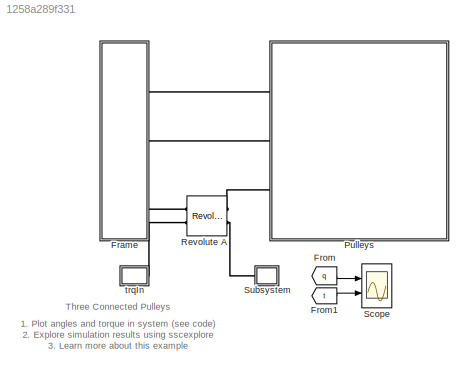
MODEL slx_1258a289f331
KIND model
CONFIG AbsTol = auto
CONFIG EnableMultiTasking = on
CONFIG FixedStep = auto
CONFIG MaxStep = auto
CONFIG MinStep = auto
CONFIG RelTol = 1e-3
CONFIG SampleTimeConstraint = Unconstrained
CONFIG Solver = VariableStepAuto
CONFIG SolverName = VariableStepAuto
CONFIG StartTime = 0.0
CONFIG StopTime = 10.0
WORKSPACE source: MATLAB code (in-file)
WORKSPACE p_th = 0.01
WORKSPACE p_gd = 0.005
WORKSPACE p_ga = 25
WORKSPACE p_hr = 0.005
WORKSPACE p_rho = 7000
WORKSPACE rad_a = 0.025
WORKSPACE rad_b = 0.025*2  (= 0.05)
WORKSPACE rad_c = 0.02
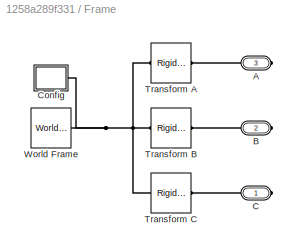
BLOCK [SubSystem] Frame
  Ports = [0, 0, 0, 0, 0, 0, 3]
  RequestExecContextInheritance = off
BLOCK [PMIOPort] Frame/A
  Port = 3
  Side = Right
BLOCK [PMIOPort] Frame/B
  Port = 2
  Side = Right
BLOCK [PMIOPort] Frame/C
  Side = Right
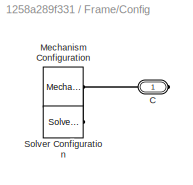
BLOCK [SubSystem] Frame/Config
  Ports = [0, 0, 0, 0, 0, 0, 1]
  RequestExecContextInheritance = off
BLOCK [PMIOPort] Frame/Config/C
  Side = Right
BLOCK [Reference] Frame/Config/Mechanism Configuration  REF=sm_lib/Utilities/Mechanism
Configuration
  Ports = [0, 0, 0, 0, 0, 0, 1]
  SourceBlock = sm_lib/Utilities/Mechanism\nConfiguration
  SourceProductBaseCode = MS
  SourceProductName = Simscape Multibody
  SourceType = Mechanism\nConfiguration
BLOCK [Reference] Frame/Config/Solver Configuration  REF=nesl_utility/Solver
Configuration
  Ports = [0, 0, 0, 0, 0, 0, 1]
  SourceBlock = nesl_utility/Solver\nConfiguration
  SourceProductBaseCode = SS
  SourceProductName = Simscape
  SourceType = Solver\nConfiguration
BLOCK [Reference] Frame/Transform A  REF=sm_lib/Frames and
Transforms/Rigid
Transform
  Ports = [0, 0, 0, 0, 0, 1, 1]
  SourceBlock = sm_lib/Frames and\nTransforms/Rigid\nTransform
  SourceProductBaseCode = MS
  SourceProductName = Simscape Multibody
  SourceType = Rigid\nTransform
BLOCK [Reference] Frame/Transform B  REF=sm_lib/Frames and
Transforms/Rigid
Transform
  Ports = [0, 0, 0, 0, 0, 1, 1]
  SourceBlock = sm_lib/Frames and\nTransforms/Rigid\nTransform
  SourceProductBaseCode = MS
  SourceProductName = Simscape Multibody
  SourceType = Rigid\nTransform
BLOCK [Reference] Frame/Transform C  REF=sm_lib/Frames and
Transforms/Rigid
Transform
  Ports = [0, 0, 0, 0, 0, 1, 1]
  SourceBlock = sm_lib/Frames and\nTransforms/Rigid\nTransform
  SourceProductBaseCode = MS
  SourceProductName = Simscape Multibody
  SourceType = Rigid\nTransform
BLOCK [Reference] Frame/World Frame  REF=sm_lib/Frames and
Transforms/World Frame
  Ports = [0, 0, 0, 0, 0, 0, 1]
  SourceBlock = sm_lib/Frames and\nTransforms/World Frame
  SourceProductBaseCode = MS
  SourceProductName = Simscape Multibody
  SourceType = World Frame
BLOCK [From] From
  GotoTag = q
  TagVisibility = global
BLOCK [From] From1
  GotoTag = t
  TagVisibility = global
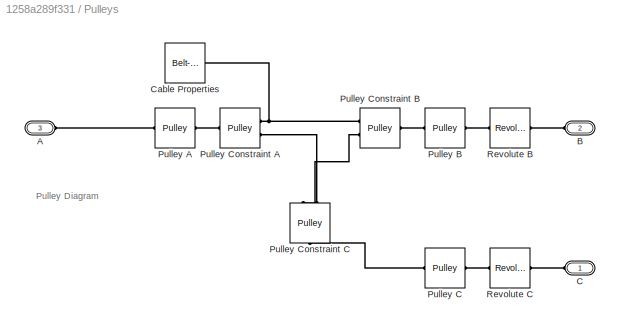
BLOCK [SubSystem] Pulleys
  Ports = [0, 0, 0, 0, 0, 3]
  RequestExecContextInheritance = off
  Tag = PublishSubsystem
BLOCK [PMIOPort] Pulleys/A
  Port = 3
  Side = Left
BLOCK [PMIOPort] Pulleys/B
  Port = 2
  Side = Left
BLOCK [PMIOPort] Pulleys/C
  Side = Left
BLOCK [Reference] Pulleys/Cable Properties  REF=sm_lib/Belts and Cables/Belt-Cable
Properties
  Ports = [0, 0, 0, 0, 0, 1]
  SourceBlock = sm_lib/Belts and Cables/Belt-Cable\nProperties
  SourceProductBaseCode = MS
  SourceProductName = Simscape Multibody
  SourceType = Belt-Cable\nProperties
BLOCK [Reference] Pulleys/Pulley A  REF=Multibody_Parts_Lib/Basic/Pulley
  Ports = [0, 0, 0, 0, 0, 1, 1]
  SourceBlock = Multibody_Parts_Lib/Basic/Pulley
  SourceProductName = Simscape Multibody Parts Library
  SourceType = Pulley with Hole
BLOCK [Reference] Pulleys/Pulley B  REF=Multibody_Parts_Lib/Basic/Pulley
  Ports = [0, 0, 0, 0, 0, 1, 1]
  SourceBlock = Multibody_Parts_Lib/Basic/Pulley
  SourceProductName = Simscape Multibody Parts Library
  SourceType = Pulley with Hole
BLOCK [Reference] Pulleys/Pulley C  REF=Multibody_Parts_Lib/Basic/Pulley
  Ports = [0, 0, 0, 0, 0, 1, 1]
  SourceBlock = Multibody_Parts_Lib/Basic/Pulley
  SourceProductName = Simscape Multibody Parts Library
  SourceType = Pulley with Hole
BLOCK [Reference] Pulleys/Pulley Constraint A  REF=sm_lib/Belts and Cables/Pulley
  Ports = [0, 0, 0, 0, 0, 1, 2]
  SourceBlock = sm_lib/Belts and Cables/Pulley
  SourceProductBaseCode = MS
  SourceProductName = Simscape Multibody
  SourceType = Pulley
BLOCK [Reference] Pulleys/Pulley Constraint B  REF=sm_lib/Belts and Cables/Pulley
  Ports = [0, 0, 0, 0, 0, 1, 2]
  SourceBlock = sm_lib/Belts and Cables/Pulley
  SourceProductBaseCode = MS
  SourceProductName = Simscape Multibody
  SourceType = Pulley
BLOCK [Reference] Pulleys/Pulley Constraint C  REF=sm_lib/Belts and Cables/Pulley
  Ports = [0, 0, 0, 0, 0, 1, 2]
  SourceBlock = sm_lib/Belts and Cables/Pulley
  SourceProductBaseCode = MS
  SourceProductName = Simscape Multibody
  SourceType = Pulley
BLOCK [Reference] Pulleys/Revolute B  REF=sm_lib/Joints/Revolute Joint
  Ports = [0, 0, 0, 0, 0, 1, 1]
  SourceBlock = sm_lib/Joints/Revolute Joint
  SourceProductBaseCode = MS
  SourceProductName = Simscape Multibody
  SourceType = Revolute Joint
BLOCK [Reference] Pulleys/Revolute C  REF=sm_lib/Joints/Revolute Joint
  Ports = [0, 0, 0, 0, 0, 1, 1]
  SourceBlock = sm_lib/Joints/Revolute Joint
  SourceProductBaseCode = MS
  SourceProductName = Simscape Multibody
  SourceType = Revolute Joint
BLOCK [Reference] Revolute A  REF=sm_lib/Joints/Revolute Joint
  Ports = [0, 0, 0, 0, 0, 2, 2]
  SourceBlock = sm_lib/Joints/Revolute Joint
  SourceProductBaseCode = MS
  SourceProductName = Simscape Multibody
  SourceType = Revolute Joint
BLOCK [Scope] Scope
  Floating = off
  NumInputPorts = 2
  Ports = [2]
  ScopeSpecificationString = Simulink.scopes.TimeScopeBlockCfg('CurrentConfiguration', extmgr.ConfigurationSet(extmgr.Configuration('Core','General UI',true),extmgr.Configuration('Core','Source UI',true),extmgr.Configuration('Sources','WiredSimulink',true),extmgr.Configuration('Visuals','Time Domain',true,'SerializedDisplays',{struct('MinYLimReal','-7.84905','MaxYLimReal','7.84906','YLabelReal','','MinYLimMag','0.00000','MaxY...<+1400ch>
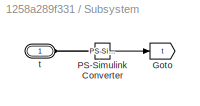
BLOCK [SubSystem] Subsystem
  Ports = [0, 0, 0, 0, 0, 1]
  RequestExecContextInheritance = off
BLOCK [Goto] Subsystem/Goto
  GotoTag = t
  TagVisibility = global
BLOCK [Reference] Subsystem/PS-Simulink Converter  REF=nesl_utility/PS-Simulink
Converter
  Ports = [0, 1, 0, 0, 0, 1]
  SourceBlock = nesl_utility/PS-Simulink\nConverter
  SourceProductBaseCode = SS
  SourceProductName = Simscape
  SourceType = PS-Simulink\nConverter
BLOCK [PMIOPort] Subsystem/t
  Side = Left
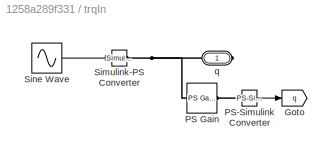
BLOCK [SubSystem] trqIn
  Ports = [0, 0, 0, 0, 0, 0, 1]
  RequestExecContextInheritance = off
BLOCK [Goto] trqIn/Goto
  GotoTag = q
  TagVisibility = global
BLOCK [Reference] trqIn/PS Gain  REF=fl_lib/Physical Signals/Functions/PS Gain
  Ports = [0, 0, 0, 0, 0, 1, 1]
  SourceBlock = fl_lib/Physical Signals/Functions/PS Gain
  SourceProductBaseCode = SS
  SourceProductName = Simscape
  SourceType = PS Gain
BLOCK [Reference] trqIn/PS-Simulink Converter  REF=nesl_utility/PS-Simulink
Converter
  Ports = [0, 1, 0, 0, 0, 1]
  SourceBlock = nesl_utility/PS-Simulink\nConverter
  SourceProductBaseCode = SS
  SourceProductName = Simscape
  SourceType = PS-Simulink\nConverter
BLOCK [Reference] trqIn/Simulink-PS Converter  REF=nesl_utility/Simulink-PS
Converter
  Ports = [1, 0, 0, 0, 0, 0, 1]
  SourceBlock = nesl_utility/Simulink-PS\nConverter
  SourceProductBaseCode = SS
  SourceProductName = Simscape
  SourceType = Simulink-PS\nConverter
BLOCK [Sin] trqIn/Sine Wave
  Amplitude = 360
  Frequency = 2*pi/2.5
  Ports = [0, 1]
  SampleTime = 0
BLOCK [PMIOPort] trqIn/q
  Side = Right
ANNOTATION (root): 1. Plot angles and torque in system ( see code ) 2. Explore simulation results using sscexplore 3. Learn more about this example
ANNOTATION (root): Three Connected Pulleys
ANNOTATION Pulleys: Pulley Diagram
LINE From1:1 -> Scope:2
LINE From:1 -> Scope:1
LINE Subsystem/PS-Simulink Converter:1 -> Subsystem/Goto:1
LINE trqIn/PS-Simulink Converter:1 -> trqIn/Goto:1
LINE trqIn/Sine Wave:1 -> trqIn/Simulink-PS Converter:1
PLINE Frame/A:RConn1 -- Frame/Transform A:RConn1
PLINE Frame/B:RConn1 -- Frame/Transform B:RConn1
PLINE Frame/C:RConn1 -- Frame/Transform C:RConn1
PNET net1: Frame/Config/C:RConn1 -- Frame/Config/Mechanism Configuration:RConn1 -- Frame/Config/Solver Configuration:RConn1
PNET net2: Frame/Config:RConn1 -- Frame/Transform A:LConn1 -- Frame/Transform B:LConn1 -- Frame/Transform C:LConn1 -- Frame/World Frame:RConn1
PLINE Frame:RConn1 -- Pulleys:LConn1
PLINE Frame:RConn2 -- Pulleys:LConn2
PLINE Frame:RConn3 -- Revolute A:LConn1
PLINE Pulleys/A:RConn1 -- Pulleys/Pulley A:LConn1
PLINE Pulleys/B:RConn1 -- Pulleys/Revolute B:LConn1
PLINE Pulleys/C:RConn1 -- Pulleys/Revolute C:LConn1
PNET net3: Pulleys/Cable Properties:LConn1 -- Pulleys/Pulley Constraint A:RConn1 -- Pulleys/Pulley Constraint B:RConn1
PLINE Pulleys/Pulley A:RConn1 -- Pulleys/Pulley Constraint A:LConn1
PLINE Pulleys/Pulley B:LConn1 -- Pulleys/Pulley Constraint B:LConn1
PLINE Pulleys/Pulley B:RConn1 -- Pulleys/Revolute B:RConn1
PLINE Pulleys/Pulley C:LConn1 -- Pulleys/Pulley Constraint C:LConn1
PLINE Pulleys/Pulley C:RConn1 -- Pulleys/Revolute C:RConn1
PLINE Pulleys/Pulley Constraint A:RConn2 -- Pulleys/Pulley Constraint C:RConn2
PLINE Pulleys/Pulley Constraint B:RConn2 -- Pulleys/Pulley Constraint C:RConn1
PLINE Pulleys:LConn3 -- Revolute A:RConn1
PLINE Revolute A:LConn2 -- trqIn:RConn1
PLINE Revolute A:RConn2 -- Subsystem:LConn1
PLINE Subsystem/PS-Simulink Converter:LConn1 -- Subsystem/t:RConn1
PNET net4: trqIn/PS Gain:LConn1 -- trqIn/Simulink-PS Converter:RConn1 -- trqIn/q:RConn1
PLINE trqIn/PS Gain:RConn1 -- trqIn/PS-Simulink Converter:LConn1
note: PNET lines group multi-terminal physical nets as a canonical sorted terminal list (undirected conserving connections); 2-terminal nets keep the pairwise PLINE form
